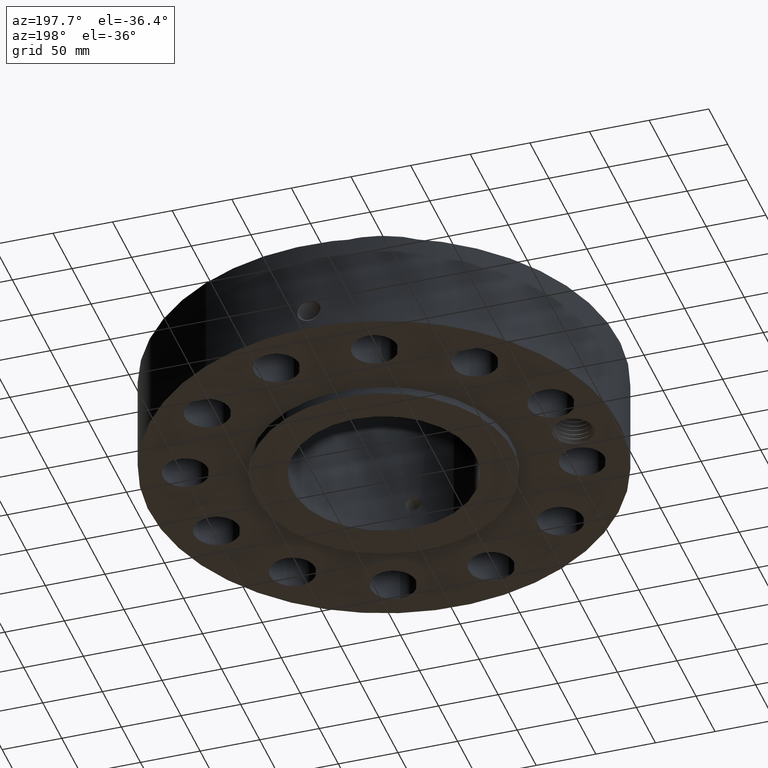
[diagram: clean part render]
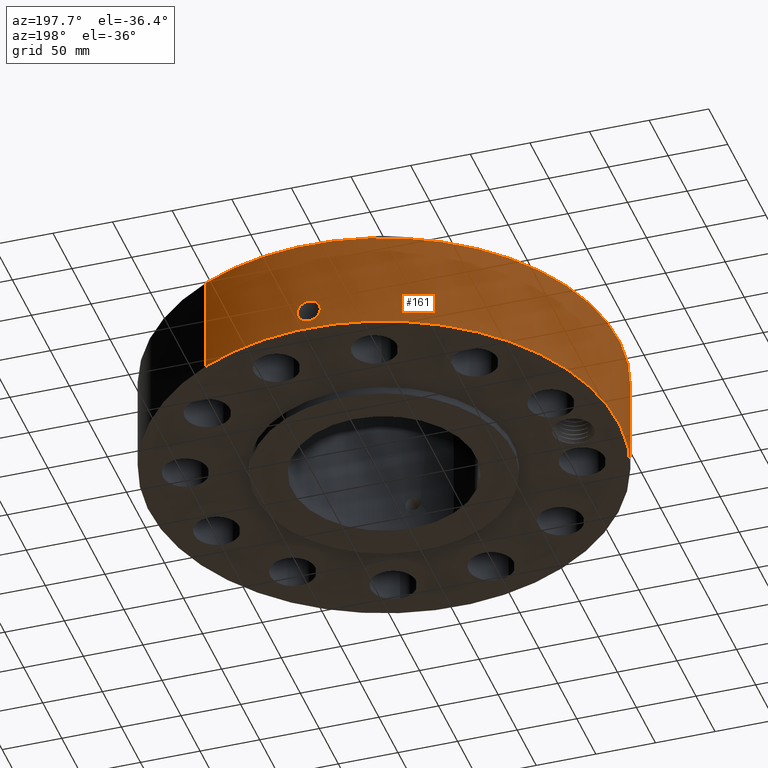
[diagram: same view with one face highlighted and labeled with its STEP entity id]
A machine part, auxiliary view. The second image highlights one B-rep face of the part: STEP entity #161.
In plain terms, the highlighted cylindrical surface (partial cylindrical patch) has radius 196.85 mm, axis along (0, 0, -1).
Its self-contained STEP definition (entity closure, byte-faithful):
#38=AXIS2_PLACEMENT_3D('Cylinder Axis2P3D',#35,#36,#37) ;
#42=AXIS2_PLACEMENT_3D('Circle Axis2P3D',#40,#41,$) ;
#58=AXIS2_PLACEMENT_3D('Circle Axis2P3D',#56,#57,$) ;
#35=CARTESIAN_POINT('Axis2P3D Location',(0.,0.,3.50000000001)) ;
#40=CARTESIAN_POINT('Axis2P3D Location',(0.,0.,0.250000000001)) ;
#44=CARTESIAN_POINT('Vertex',(-3.7155479242,-6.80126485468,0.250000000001)) ;
#46=CARTESIAN_POINT('Vertex',(3.7155479242,6.80126485468,0.250000000001)) ;
#49=CARTESIAN_POINT('Line Origine',(-3.7155479242,-6.80126485468,1.87500000001)) ;
#53=CARTESIAN_POINT('Vertex',(-3.7155479242,-6.80126485468,3.50000000001)) ;
#56=CARTESIAN_POINT('Axis2P3D Location',(0.,0.,3.50000000001)) ;
#60=CARTESIAN_POINT('Vertex',(3.7155479242,6.80126485468,3.50000000001)) ;
#63=CARTESIAN_POINT('Line Origine',(3.7155479242,6.80126485468,1.87500000001)) ;
#75=CARTESIAN_POINT('Control Point',(-0.0591040232344,7.74977462349,1.28914461495)) ;
#76=CARTESIAN_POINT('Control Point',(-0.0398240060589,7.74992166346,1.29241312134)) ;
#77=CARTESIAN_POINT('Control Point',(-0.0202719120693,7.74999815937,1.29407885119)) ;
#78=CARTESIAN_POINT('Control Point',(-0.0007163443193,7.74999996692,1.29411849859)) ;
#79=CARTESIAN_POINT('Vertex',(-0.0590889067993,7.74977499882,1.28914746663)) ;
#81=CARTESIAN_POINT('Vertex',(-0.000716204557814,7.74999996694,1.29411850902)) ;
#85=CARTESIAN_POINT('Control Point',(-0.0590888018314,7.74977473956,1.2891468862)) ;
#86=CARTESIAN_POINT('Control Point',(-0.0981140726259,7.74947718814,1.28418124292)) ;
#87=CARTESIAN_POINT('Control Point',(-0.13635309575,7.74887986363,1.27210752585)) ;
#88=CARTESIAN_POINT('Control Point',(-0.171434496312,7.74810365276,1.25384047258)) ;
#89=CARTESIAN_POINT('Vertex',(-0.171434496312,7.74810365276,1.25384047258)) ;
#93=CARTESIAN_POINT('Control Point',(-0.0300538474529,7.74994172667,0.531118325743)) ;
#94=CARTESIAN_POINT('Control Point',(-0.0860956461591,7.74972439966,0.538255643339)) ;
#95=CARTESIAN_POINT('Control Point',(-0.140535155331,7.749006713,0.555875321176)) ;
#96=CARTESIAN_POINT('Control Point',(-0.190596409932,7.74785567317,0.583449870745)) ;
#97=CARTESIAN_POINT('Control Point',(-0.27994768719,7.74516840084,0.656378798842)) ;
#98=CARTESIAN_POINT('Control Point',(-0.337468059587,7.74271072419,0.754552965989)) ;
#99=CARTESIAN_POINT('Control Point',(-0.357297019939,7.74176545811,0.80914867214)) ;
#100=CARTESIAN_POINT('Control Point',(-0.372790853679,7.74103100774,0.898452673289)) ;
#101=CARTESIAN_POINT('Control Point',(-0.363451433639,7.74147372207,0.98693204524)) ;
#102=CARTESIAN_POINT('Control Point',(-0.356693632929,7.74179402017,1.01886416892)) ;
#103=CARTESIAN_POINT('Control Point',(-0.331580994647,7.74294572675,1.09645212482)) ;
#104=CARTESIAN_POINT('Control Point',(-0.286902278143,7.74476509454,1.16501771636)) ;
#105=CARTESIAN_POINT('Control Point',(-0.253461565089,7.7459909522,1.201472401)) ;
#106=CARTESIAN_POINT('Control Point',(-0.214385861943,7.7471533111,1.23147549071)) ;
#107=CARTESIAN_POINT('Control Point',(-0.171434496312,7.74810365276,1.25384047258)) ;
#108=CARTESIAN_POINT('Vertex',(-0.0300538474529,7.74994172667,0.531118325743)) ;
#112=CARTESIAN_POINT('Control Point',(-0.0300538474529,7.74994172667,0.531118325743)) ;
#113=CARTESIAN_POINT('Control Point',(-0.0200298142841,7.74998059932,0.530864516442)) ;
#114=CARTESIAN_POINT('Control Point',(-0.0100014198028,7.75000000355,0.530950109677)) ;
#115=CARTESIAN_POINT('Control Point',(2.7287835376E-006,7.75000000003,0.531374667805)) ;
#116=CARTESIAN_POINT('Vertex',(2.72878353887E-006,7.75000000003,0.531374667805)) ;
#120=CARTESIAN_POINT('Control Point',(0.193483240337,7.74758441298,0.585840944594)) ;
#121=CARTESIAN_POINT('Control Point',(0.149338068858,7.74868686638,0.56112361735)) ;
#122=CARTESIAN_POINT('Control Point',(0.101186279383,7.749554745,0.543463034763)) ;
#123=CARTESIAN_POINT('Control Point',(0.0508317463079,7.74999998213,0.533531761154)) ;
#124=CARTESIAN_POINT('Control Point',(2.72878355137E-006,7.75000000003,0.531374667805)) ;
#125=CARTESIAN_POINT('Vertex',(0.193483240337,7.74758441298,0.585840944594)) ;
#129=CARTESIAN_POINT('Control Point',(0.193483240337,7.74758441298,0.585840944594)) ;
#130=CARTESIAN_POINT('Control Point',(0.222651438324,7.74685598497,0.602172512697)) ;
#131=CARTESIAN_POINT('Control Point',(0.250184386402,7.74603104307,0.621391212132)) ;
#132=CARTESIAN_POINT('Control Point',(0.275676896418,7.74515025496,0.643337292313)) ;
#133=CARTESIAN_POINT('Control Point',(0.342907598266,7.74257409662,0.714637535519)) ;
#134=CARTESIAN_POINT('Control Point',(0.386121246353,7.74042422078,0.80409813724)) ;
#135=CARTESIAN_POINT('Control Point',(0.401518793406,7.73957516929,0.868347168412)) ;
#136=CARTESIAN_POINT('Control Point',(0.402822447126,7.73955490484,0.982531520869)) ;
#137=CARTESIAN_POINT('Control Point',(0.363054175884,7.74152263009,1.08721547057)) ;
#138=CARTESIAN_POINT('Control Point',(0.338931408728,7.74266144567,1.12865584943)) ;
#139=CARTESIAN_POINT('Control Point',(0.269839027232,7.74555391672,1.21320919804)) ;
#140=CARTESIAN_POINT('Control Point',(0.176467588817,7.7482822991,1.26837166279)) ;
#141=CARTESIAN_POINT('Control Point',(0.118675795889,7.74944056192,1.28849911144)) ;
#142=CARTESIAN_POINT('Control Point',(0.0588890935736,7.75000019656,1.29704135999)) ;
#143=CARTESIAN_POINT('Control Point',(-2.58579355277E-005,7.74999999999,1.29415298433)) ;
#144=CARTESIAN_POINT('Vertex',(-2.58579355338E-005,7.74999999999,1.29415298433)) ;
#148=CARTESIAN_POINT('Control Point',(-0.000716204547433,7.74999996694,1.294118509)) ;
#149=CARTESIAN_POINT('Control Point',(-0.000371055151764,7.74999999884,1.29413606064)) ;
#150=CARTESIAN_POINT('Control Point',(-2.58579416026E-005,7.74999999999,1.29415298433)) ;
#36=DIRECTION('Axis2P3D Direction',(0.,0.,-0.0393700787402)) ;
#37=DIRECTION('Axis2P3D XDirection',(0.0188750212049,0.0345504945626,0.)) ;
#41=DIRECTION('Axis2P3D Direction',(0.,0.,-0.0393700787402)) ;
#50=DIRECTION('Vector Direction',(0.,0.,-0.0393700787402)) ;
#57=DIRECTION('Axis2P3D Direction',(0.,0.,-0.0393700787402)) ;
#64=DIRECTION('Vector Direction',(0.,0.,-0.0393700787402)) ;
#51=VECTOR('Line Direction',#50,0.0393700787402) ;
#65=VECTOR('Line Direction',#64,0.0393700787402) ;
#69=ORIENTED_EDGE('',*,*,#48,.F.) ;
#70=ORIENTED_EDGE('',*,*,#55,.T.) ;
#71=ORIENTED_EDGE('',*,*,#62,.T.) ;
#72=ORIENTED_EDGE('',*,*,#67,.F.) ;
#153=ORIENTED_EDGE('',*,*,#83,.F.) ;
#154=ORIENTED_EDGE('',*,*,#91,.T.) ;
#155=ORIENTED_EDGE('',*,*,#110,.F.) ;
#156=ORIENTED_EDGE('',*,*,#118,.T.) ;
#157=ORIENTED_EDGE('',*,*,#127,.F.) ;
#158=ORIENTED_EDGE('',*,*,#146,.T.) ;
#159=ORIENTED_EDGE('',*,*,#151,.F.) ;
#160=FACE_BOUND('',#152,.T.) ;
#161=ADVANCED_FACE('PartBody',(#73,#160),#39,.T.) ;
#74=B_SPLINE_CURVE_WITH_KNOTS('',3,(#75,#76,#77,#78),.UNSPECIFIED.,.F.,.U.,(4,4),(4.35191957156,6.52143274063),.UNSPECIFIED.) ;
#84=B_SPLINE_CURVE_WITH_KNOTS('',3,(#85,#86,#87,#88),.UNSPECIFIED.,.F.,.U.,(4,4),(0.,4.42024184661),.UNSPECIFIED.) ;
#92=B_SPLINE_CURVE_WITH_KNOTS('',5,(#93,#94,#95,#96,#97,#98,#99,#100,#101,#102,#103,#104,#105,#106,#107),.UNSPECIFIED.,.F.,.U.,(6,3,3,3,6),(0.,9.81851161138,20.1336781263,26.1161203204,35.1358772715),.UNSPECIFIED.) ;
#111=B_SPLINE_CURVE_WITH_KNOTS('',3,(#112,#113,#114,#115),.UNSPECIFIED.,.F.,.U.,(4,4),(0.,1.04555052053),.UNSPECIFIED.) ;
#119=B_SPLINE_CURVE_WITH_KNOTS('',4,(#120,#121,#122,#123,#124),.UNSPECIFIED.,.F.,.U.,(5,5),(0.,7.082969009),.UNSPECIFIED.) ;
#128=B_SPLINE_CURVE_WITH_KNOTS('',5,(#129,#130,#131,#132,#133,#134,#135,#136,#137,#138,#139,#140,#141,#142,#143),.UNSPECIFIED.,.F.,.U.,(6,3,3,3,6),(0.,5.84994445729,17.0731025674,25.5042513389,36.5166771256),.UNSPECIFIED.) ;
#147=B_SPLINE_CURVE_WITH_KNOTS('',2,(#148,#149,#150),.UNSPECIFIED.,.F.,.U.,(3,3),(1.054178793,1.07998860024),.UNSPECIFIED.) ;
#43=CIRCLE('generated circle',#42,7.75000000003) ;
#59=CIRCLE('generated circle',#58,7.75000000003) ;
#39=CYLINDRICAL_SURFACE('generated cylinder',#38,7.75000000003) ;
#48=EDGE_CURVE('',#45,#47,#43,.T.) ;
#55=EDGE_CURVE('',#45,#54,#52,.F.) ;
#62=EDGE_CURVE('',#54,#61,#59,.T.) ;
#67=EDGE_CURVE('',#47,#61,#66,.F.) ;
#83=EDGE_CURVE('',#80,#82,#74,.T.) ;
#91=EDGE_CURVE('',#80,#90,#84,.T.) ;
#110=EDGE_CURVE('',#109,#90,#92,.T.) ;
#118=EDGE_CURVE('',#109,#117,#111,.T.) ;
#127=EDGE_CURVE('',#126,#117,#119,.T.) ;
#146=EDGE_CURVE('',#126,#145,#128,.T.) ;
#151=EDGE_CURVE('',#82,#145,#147,.T.) ;
#68=EDGE_LOOP('',(#69,#70,#71,#72)) ;
#152=EDGE_LOOP('',(#153,#154,#155,#156,#157,#158,#159)) ;
#73=FACE_OUTER_BOUND('',#68,.T.) ;
#52=LINE('Line',#49,#51) ;
#66=LINE('Line',#63,#65) ;
#45=VERTEX_POINT('',#44) ;
#47=VERTEX_POINT('',#46) ;
#54=VERTEX_POINT('',#53) ;
#61=VERTEX_POINT('',#60) ;
#80=VERTEX_POINT('',#79) ;
#82=VERTEX_POINT('',#81) ;
#90=VERTEX_POINT('',#89) ;
#109=VERTEX_POINT('',#108) ;
#117=VERTEX_POINT('',#116) ;
#126=VERTEX_POINT('',#125) ;
#145=VERTEX_POINT('',#144) ;